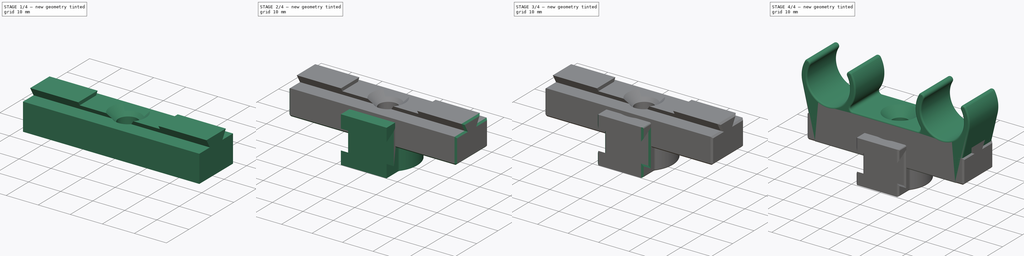
[diagram: build sequence overview — one tinted view per stage of 4, left to right]
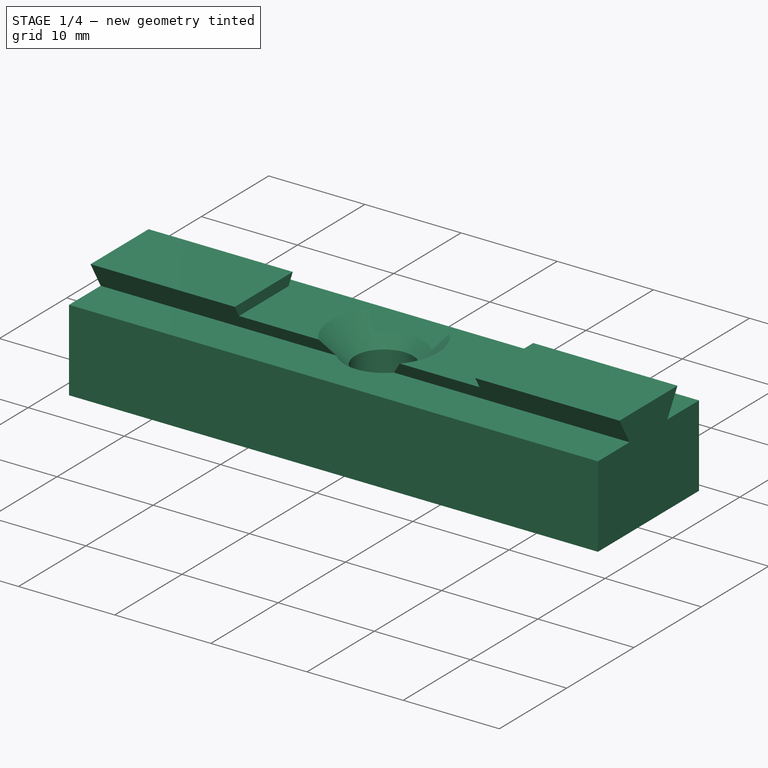
[diagram: stage 1 of 4 — iso view after this stage's code; geometry added in this stage tinted green]
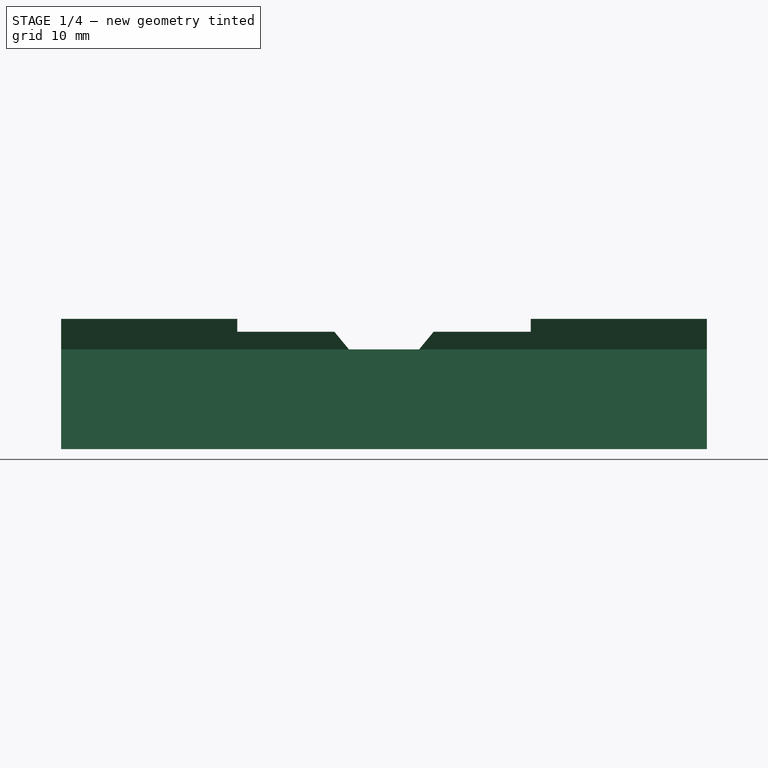
[diagram: stage 1 of 4 — front view after this stage's code; geometry added in this stage tinted green]
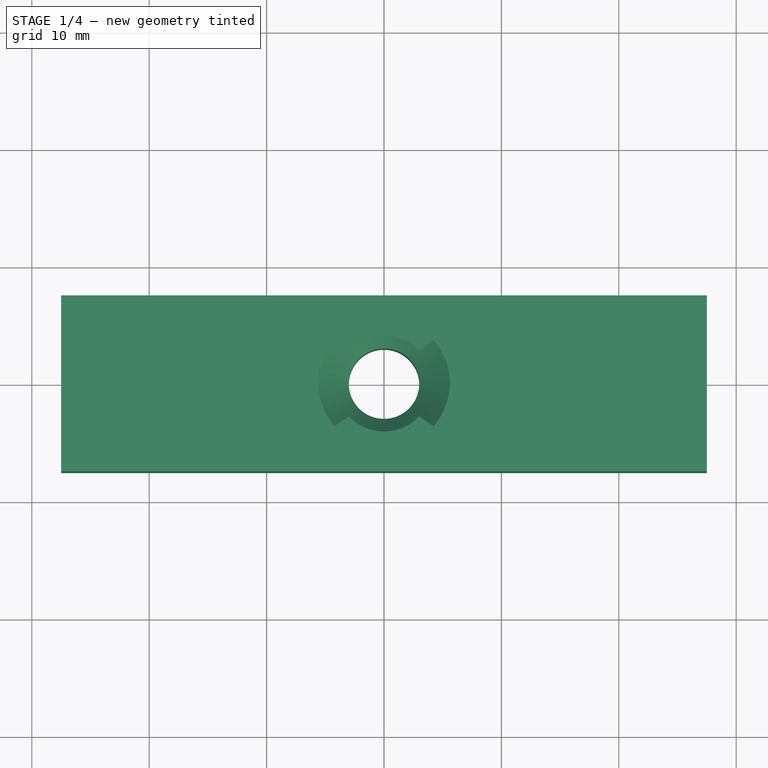
[diagram: stage 1 of 4 — top view after this stage's code; geometry added in this stage tinted green]
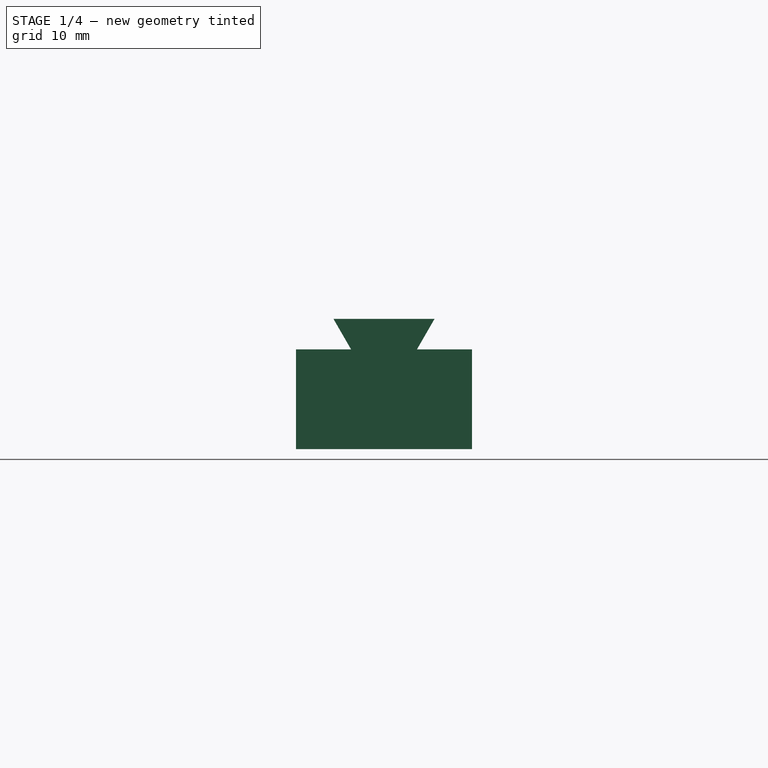
[diagram: stage 1 of 4 — right view after this stage's code; geometry added in this stage tinted green]
FCSTD DOCUMENT  (FreeCAD 1.0R39285 (Git))
Label: PipeMount
License: All rights reserved
LicenseURL: https://en.wikipedia.org/wiki/All_rights_reserved
objects: Sketcher::SketchObject×7, PartDesign::CoordinateSystem×5, PartDesign::Pad×3, App::Link×3, PartDesign::Chamfer×3, PartDesign::Fillet×3, PartDesign::Body×3, PartDesign::Hole×2, PartDesign::Pocket×2, Spreadsheet::Sheet×1, App::DocumentObjectGroup×1, App::Part×1
note: 61 computed .brp shape members not serialized (recipe doc carries the construction recipe); baked Part::Feature solids carry a one-line shape summary decoded from their .brp

FEATURE [Sketcher::SketchObject] Sketch004
  ArcFitTolerance = 1e-06
  AttachmentSupport = -> [YZ_Plane002]
  FullyConstrained = true
  MakeInternals = false
  MapMode = 5
  Placement = pos=(0,0,0) rot=(0.57735,0.57735,0.57735;2.0944rad)
  expr: Constraints[17] = <<Spreadsheet>>.FootWidth
  expr: Constraints[18] = <<Spreadsheet>>.ModularBaseHeight
  expr: Constraints[25] = <<Spreadsheet>>.WedgeWidth
  expr: Constraints[26] = <<Spreadsheet>>.WedgeAngle
  expr: Constraints[27] = <<Spreadsheet>>.WedgeHeight
  expr: Constraints[28] = <<Spreadsheet>>.WedgeTolerance
  expr: Constraints[30] = <<Spreadsheet>>.WedgeTolerance
  sketch-geometry (11):
    g0: LineSegment StartX=-7.5 StartY=0 StartZ=0 EndX=7.5 EndY=0 EndZ=0
    g1: LineSegment StartX=7.5 StartY=0 StartZ=0 EndX=7.5 EndY=8.5 EndZ=0
    g2: LineSegment StartX=7.5 StartY=8.5 StartZ=0 EndX=2.80607 EndY=8.5 EndZ=0
    g3: LineSegment StartX=2.80607 StartY=8.5 StartZ=0 EndX=4.30718 EndY=11.1 EndZ=0
    g4: LineSegment StartX=4.30718 StartY=11.1 StartZ=0 EndX=-4.30718 EndY=11.1 EndZ=0
    g5: LineSegment StartX=-4.30718 StartY=11.1 StartZ=0 EndX=-2.80607 EndY=8.5 EndZ=0
    g6: LineSegment StartX=-2.80607 StartY=8.5 StartZ=0 EndX=-7.5 EndY=8.5 EndZ=0
    g7: LineSegment StartX=-7.5 StartY=8.5 StartZ=0 EndX=-7.5 EndY=0 EndZ=0
    g8: LineSegment [constr] StartX=-3.26795 StartY=8.5 StartZ=0 EndX=-5 EndY=11.5 EndZ=0
    g9: LineSegment [constr] StartX=-5 StartY=11.5 StartZ=0 EndX=5 EndY=11.5 EndZ=0
    g10: LineSegment [constr] StartX=5 StartY=11.5 StartZ=0 EndX=3.26795 EndY=8.5 EndZ=0
  constraints (31):
    c: PointOnObject(g0,g-1)
    c: Coincident(g0,g1)
    c: Vertical(g1)
    c: Coincident(g1,g2)
    c: Horizontal(g2)
    c: Coincident(g2,g3)
    c: Coincident(g3,g4)
    c: Coincident(g4,g5)
    c: Coincident(g5,g6)
    c: Coincident(g6,g7)
    c: Coincident(g7,g0)
    c: Vertical(g7)
    c: Horizontal(g6)
    c: Symmetric(g3,g4,g-2)
    c: Symmetric(g0,g0,g-2)
    c: Equal(g7,g1)
    c: Equal(g2,g6)
    c: DistanceX(g0,g0) = 15
    c: DistanceY(g7,g7) = 8.5
    c: DistanceX(g5,g2) = 5.61214
    c: PointOnObject(g8,g6)
    c: Coincident(g8,g9)
    c: Coincident(g9,g10)
    c: Symmetric(g9,g8,g-2)
    c: Symmetric(g10,g8,g-2)
    c: DistanceX(g9,g9) = 10
    c: Angle(g9,g10) = 1.0472
    c: DistanceY(g10,g9) = 3
    c: DistanceY(g3,g9) = 0.4
    c: Parallel(g3,g10)
    c: Distance(g3,g10) = 0.4
FEATURE [PartDesign::Pad] Pad002
  Direction = (1,0,0)
  Length = 55
  Length2 = 10
  Midplane = true
  Placement = pos=(0,0,0) rot=(1,1,1;2.0944rad)
  Profile = -> Sketch004
  ReferenceAxis = -> Sketch004 [N_Axis]
  Refine = true
  Suppressed = false
  Type = 0
  expr: Length = <<Spreadsheet>>.PipeDistance + <<Spreadsheet>>.PipeDiameter
FEATURE [PartDesign::Body] Body001  label="Modular - Pipe Holder"
  AllowCompound = false
  Group = -> [Sketch002,Pad001,Sketch003,Pocket,Mount_Center,Chamfer002,Chamfer003,Fillet002,Fillet003]
  Origin = -> Origin002
  Tip = -> Fillet003
FEATURE [Sketcher::SketchObject] Sketch005
  ArcFitTolerance = 1e-06
  AttachmentSupport = -> [Pad002]
  ExternalGeometry = -> [Pad002]
  FullyConstrained = true
  MakeInternals = false
  MapMode = 5
  Placement = pos=(-1.7e-15,-7.5,8e-16) rot=(0.57735,0.57735,-0.57735;2.0944rad)
  expr: Constraints[10] = <<Spreadsheet>>.BaseMaxHeight
  expr: Constraints[11] = <<Spreadsheet>>.ModularPipeHolderBaseLength
  sketch-geometry (5):
    g0: LineSegment StartX=-11.1 StartY=12.5 StartZ=0 EndX=-11.1 EndY=-12.5 EndZ=0
    g1: LineSegment StartX=-11.1 StartY=-12.5 StartZ=0 EndX=-10 EndY=-12.5 EndZ=0
    g2: LineSegment StartX=-10 StartY=-12.5 StartZ=0 EndX=-10 EndY=12.5 EndZ=0
    g3: LineSegment StartX=-10 StartY=12.5 StartZ=0 EndX=-11.1 EndY=12.5 EndZ=0
    g4: GeomPoint [constr] X=-10.55 Y=0 Z=0
  constraints (13):
    c: Coincident(g0,g1)
    c: Coincident(g1,g2)
    c: Coincident(g2,g3)
    c: Coincident(g3,g0)
    c: Vertical(g0)
    c: Vertical(g2)
    c: Horizontal(g1)
    c: Horizontal(g3)
    c: Symmetric(g2,g0,g4)
    c: PointOnObject(g4,g-1)
    c: DistanceX(g2,g-1) = 10
    c: DistanceY(g2,g-3) = 15
    c: PointOnObject(g0,g-4)
FEATURE [PartDesign::Pocket] Pocket001
  BaseFeature = -> Pad002
  Direction = (0,1,0)
  Length = 5
  Length2 = 5
  Placement = pos=(0,0,0) rot=(1,1,1;2.0944rad)
  Profile = -> Sketch005
  ReferenceAxis = -> Sketch005 [N_Axis]
  Refine = true
  Suppressed = false
  Type = 1
FEATURE [Sketcher::SketchObject] Sketch006
  ArcFitTolerance = 1e-06
  AttachmentSupport = -> [Pocket001]
  FullyConstrained = true
  MakeInternals = false
  MapMode = 5
  Placement = pos=(-1.1e-15,3.3e-15,10) rot=(0,0,-1;1.5708rad)
  expr: Constraints[1] = <<Spreadsheet>>.HoleDiameter
  sketch-geometry (1):
    g0: Circle CenterX=0 CenterY=0 CenterZ=0 NormalX=0 NormalY=0 NormalZ=1 AngleXU=0 Radius=2.75
  constraints (2):
    c: Coincident(g0,g-1)
    c: Diameter(g0) = 5.5
FEATURE [PartDesign::Hole] Hole001
  BaseFeature = -> Pocket001
  CustomThreadClearance = 0
  Depth = 25
  DepthType = 0
  Diameter = 6
  DrillForDepth = false
  DrillPoint = 1
  DrillPointAngle = 118
  HoleCutCountersinkAngle = 90
  HoleCutCustomValues = false
  HoleCutDepth = 1
  HoleCutDiameter = 11.2
  HoleCutType = 2
  ModelThread = false
  Placement = pos=(0,0,0) rot=(1,1,1;2.0944rad)
  Profile = -> Sketch006
  Refine = true
  Suppressed = false
  Tapered = false
  TaperedAngle = 90
  ThreadClass = 0
  ThreadDepth = 25
  ThreadDepthType = 0
  ThreadDirection = 0
  ThreadFit = 0
  ThreadSize = 0
  ThreadType = 0
  Threaded = false
  UseCustomThreadClearance = false
  expr: HoleCutDepth = <<Spreadsheet>>.HeadDepth
  expr: HoleCutDiameter = <<Spreadsheet>>.HeadDiameter
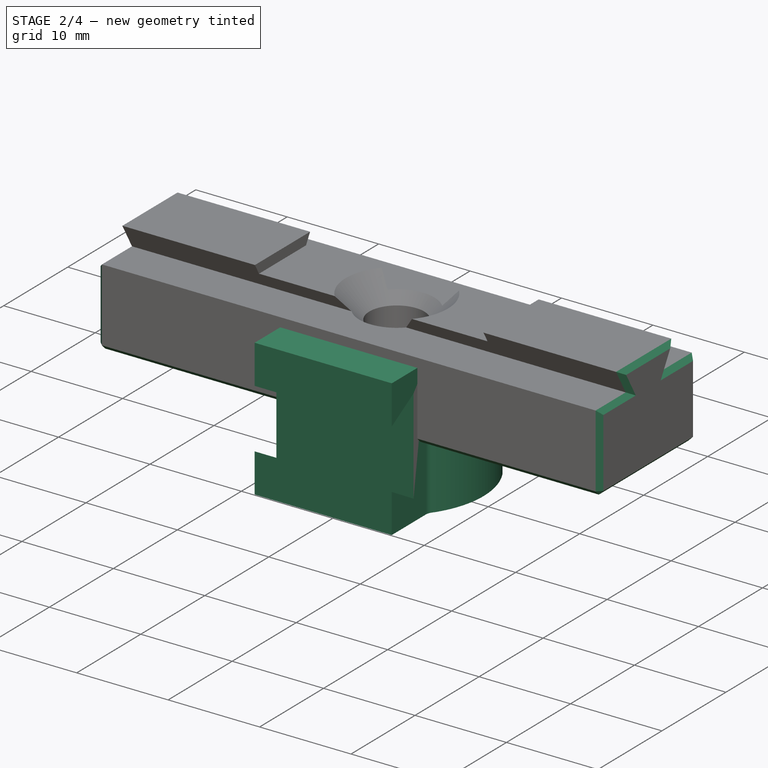
[diagram: stage 2 of 4 — iso view after this stage's code; geometry added in this stage tinted green]
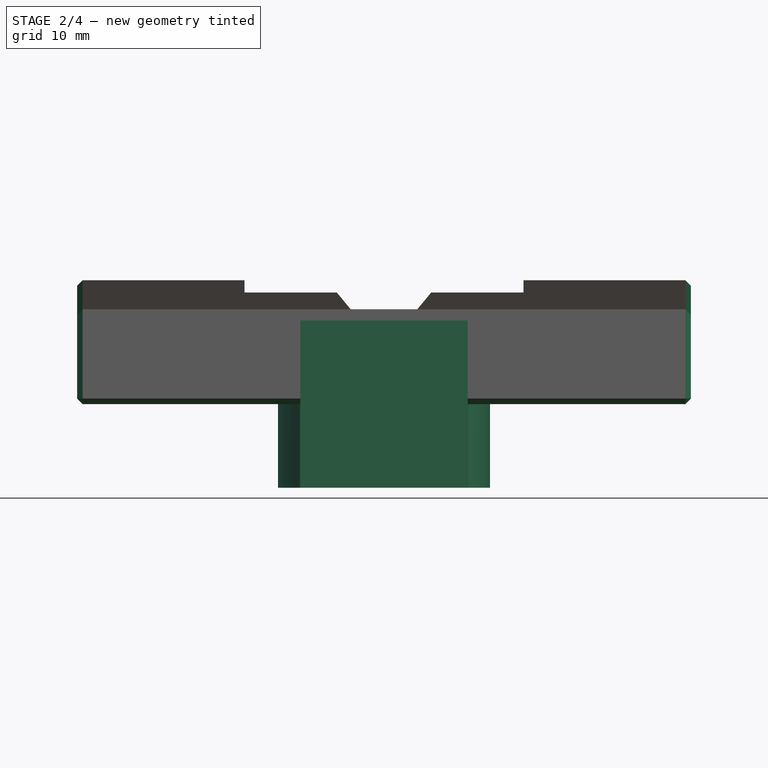
[diagram: stage 2 of 4 — front view after this stage's code; geometry added in this stage tinted green]
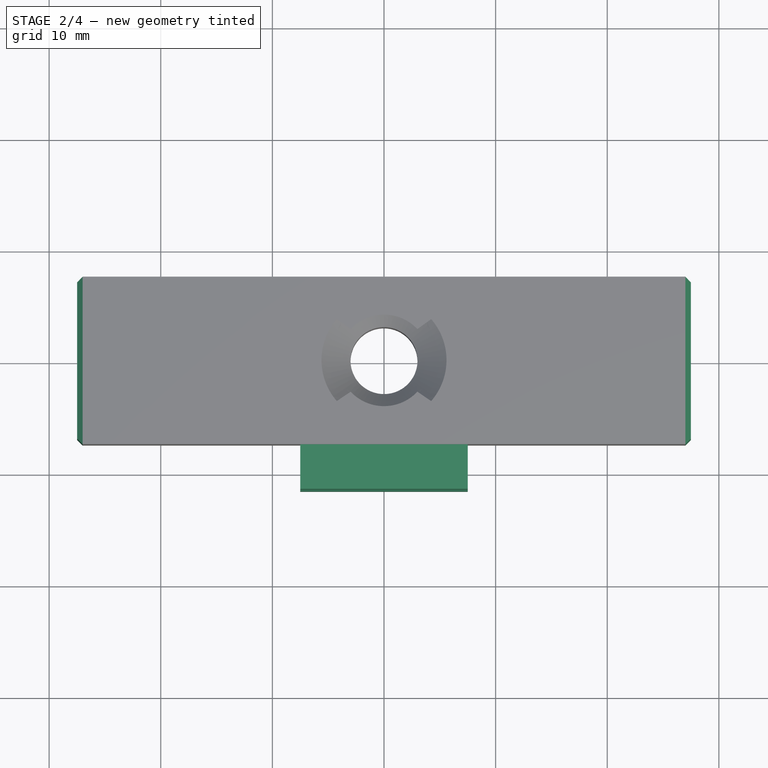
[diagram: stage 2 of 4 — top view after this stage's code; geometry added in this stage tinted green]
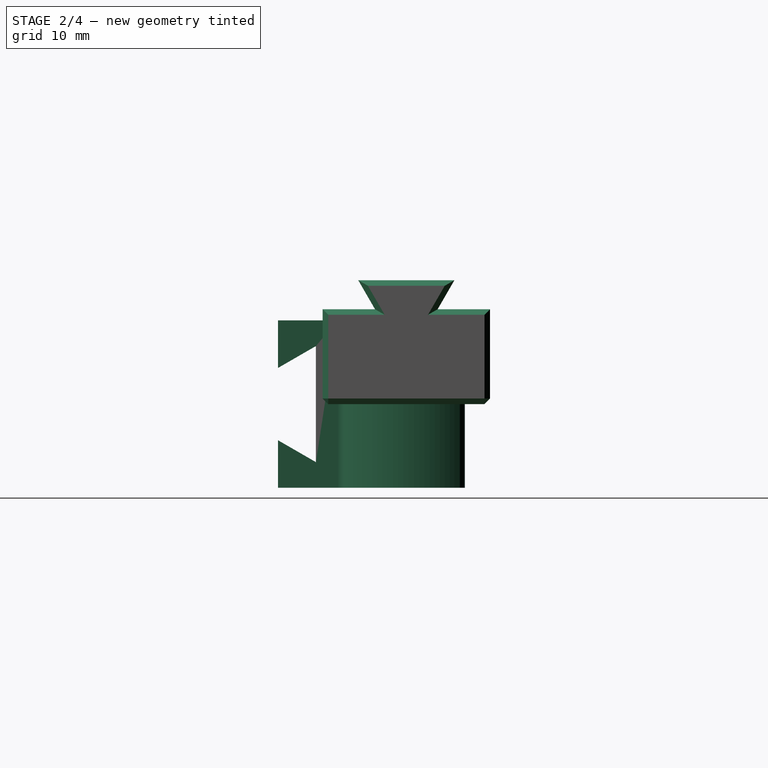
[diagram: stage 2 of 4 — right view after this stage's code; geometry added in this stage tinted green]
FEATURE [Sketcher::SketchObject] Sketch002
  ArcFitTolerance = 1e-06
  AttachmentSupport = -> [XY_Plane001]
  FullyConstrained = true
  MakeInternals = false
  MapMode = 5
  expr: Constraints[10] = <<Spreadsheet>>.PipeDiameter
  expr: Constraints[11] = <<Spreadsheet>>.HolderThickness
  expr: Constraints[12] = <<Spreadsheet>>.PipeOpening
  expr: Constraints[25] = <<Spreadsheet>>.ModularPipeHolderBaseLength
  expr: Constraints[28] = <<Spreadsheet>>.ModularPipeHolderBaseThickness + <<Spreadsheet>>.WedgeHeight
  expr: Constraints[37] = <<Spreadsheet>>.ModularBaseHeight
  sketch-geometry (14):
    g0: ArcOfCircle CenterX=0 CenterY=0 CenterZ=0 NormalX=0 NormalY=0 NormalZ=1 AngleXU=0 Radius=7.5 StartAngle=2.61928 EndAngle=6.8055
    g1: ArcOfCircle CenterX=0 CenterY=0 CenterZ=0 NormalX=0 NormalY=0 NormalZ=1 AngleXU=0 Radius=9.5 StartAngle=2.61928 EndAngle=3.76905
    g2: ArcOfCircle CenterX=0 CenterY=0 CenterZ=0 NormalX=0 NormalY=0 NormalZ=1 AngleXU=0 Radius=9.5 StartAngle=5.65573 EndAngle=6.8055
    g3: ArcOfCircle CenterX=-7.36667 CenterY=4.24055 CenterZ=0 NormalX=0 NormalY=0 NormalZ=1 AngleXU=0 Radius=1 StartAngle=5.76087 EndAngle=8.90246
    g4: ArcOfCircle CenterX=7.36667 CenterY=4.24055 CenterZ=0 NormalX=0 NormalY=0 NormalZ=1 AngleXU=0 Radius=1 StartAngle=0.522315 EndAngle=3.66391
    g5: ArcOfCircle CenterX=-8.5 CenterY=-6.16441 CenterZ=0 NormalX=0 NormalY=0 NormalZ=1 AngleXU=0 Radius=1 StartAngle=2e-16 EndAngle=0.627456
    g6: ArcOfCircle CenterX=8.5 CenterY=-6.16441 CenterZ=0 NormalX=0 NormalY=0 NormalZ=1 AngleXU=0 Radius=1 StartAngle=2.51414 EndAngle=3.14159
    g7: LineSegment StartX=-7.5 StartY=-6.16441 StartZ=0 EndX=-7.5 EndY=-11.5 EndZ=0
    g8: LineSegment StartX=-7.5 StartY=-11.5 StartZ=0 EndX=7.5 EndY=-11.5 EndZ=0
    g9: LineSegment StartX=7.5 StartY=-11.5 StartZ=0 EndX=7.5 EndY=-6.16441 EndZ=0
    g10: GeomPoint X=0 Y=-7.5 Z=0
    g11: LineSegment [constr] StartX=-7.5 StartY=-11.5 StartZ=0 EndX=-7.5 EndY=-20 EndZ=0
    g12: LineSegment [constr] StartX=-7.5 StartY=-20 StartZ=0 EndX=7.5 EndY=-20 EndZ=0
    g13: LineSegment [constr] StartX=7.5 StartY=-20 StartZ=0 EndX=7.5 EndY=-11.5 EndZ=0
  constraints (39):
    c: Tangent(g3,g1) = -1.5708
    c: Tangent(g3,g0) = 1.5708
    c: Tangent(g4,g0) = 1.5708
    c: Coincident(g1,g0)
    c: Coincident(g1,g2)
    c: Coincident(g1,g-1)
    c: Tangent(g4,g2) = -1.5708
    c: Equal(g1,g2)
    c: Horizontal(g0,g0)
    c: Horizontal(g1,g2)
    c: Diameter(g0) = 15
    c: Diameter(g4) = 2
    c: DistanceX(g0,g0) = 13
    c: Coincident(g5,g1)
    c: Tangent(g5,g7) = 1.5708
    c: Coincident(g7,g8)
    c: Horizontal(g8)
    c: Coincident(g8,g9)
    c: Vertical(g9)
    c: Tangent(g9,g6) = 1.5708
    c: Tangent(g6,g2) = 1.5708
    c: Vertical(g7)
    c: Equal(g9,g7)
    c: Equal(g5,g6)
    c: Equal(g6,g4)
    c: DistanceX(g8,g8) = 15
    c: PointOnObject(g10,g0)
    c: PointOnObject(g10,g-2)
    c: DistanceY(g8,g10) = 4
    c: Coincident(g7,g11)
    c: Vertical(g11)
    c: Coincident(g11,g12)
    c: Horizontal(g12)
    c: Coincident(g12,g13)
    c: Coincident(g13,g8)
    c: Vertical(g13)
    c: DistanceY(g11,g0) = 20
    c: DistanceY(g13,g13) = 8.5
    c: DistanceY(g7,g-1) = 11.5
FEATURE [PartDesign::Pad] Pad001
  Direction = (0,0,1)
  Length = 15
  Length2 = 10
  Midplane = true
  Profile = -> Sketch002
  ReferenceAxis = -> Sketch002 [N_Axis]
  Refine = true
  Suppressed = false
  Type = 0
  expr: Length = <<Spreadsheet>>.FootWidth
FEATURE [Sketcher::SketchObject] Sketch003
  ArcFitTolerance = 1e-06
  AttachmentSupport = -> [Pad001]
  ExternalGeometry = -> [Pad001]
  FullyConstrained = true
  MakeInternals = false
  MapMode = 5
  Placement = pos=(7.5,0,0) rot=(0.57735,0.57735,0.57735;2.0944rad)
  expr: Constraints[10] = <<Spreadsheet>>.WedgeAngle
  expr: Constraints[6] = <<Spreadsheet>>.WedgeWidth + <<Spreadsheet>>.WedgeTolerance
  expr: Constraints[7] = <<Spreadsheet>>.WedgeHeight + <<Spreadsheet>>.WedgeTolerance
  sketch-geometry (4):
    g0: LineSegment StartX=-11.5 StartY=-3.23701 StartZ=0 EndX=-11.5 EndY=3.23701 EndZ=0
    g1: LineSegment StartX=-11.5 StartY=3.23701 StartZ=0 EndX=-8.1 EndY=5.2 EndZ=0
    g2: LineSegment StartX=-8.1 StartY=5.2 StartZ=0 EndX=-8.1 EndY=-5.2 EndZ=0
    g3: LineSegment StartX=-8.1 StartY=-5.2 StartZ=0 EndX=-11.5 EndY=-3.23701 EndZ=0
  constraints (11):
    c: Coincident(g0,g1)
    c: Coincident(g1,g2)
    c: Coincident(g2,g3)
    c: Coincident(g3,g0)
    c: Symmetric(g0,g0,g-1)
    c: Symmetric(g2,g1,g-1)
    c: DistanceY(g2,g2) = 10.4
    c: DistanceX(g0,g1) = 3.4
    c: PointOnObject(g0,g-3)
    c: DistanceY(g0,g0) = 6.47402
    c: Angle(g1,g2) = 1.0472
FEATURE [PartDesign::Pocket] Pocket
  BaseFeature = -> Pad001
  Direction = (-1,0,0)
  Length = 5
  Length2 = 5
  Profile = -> Sketch003
  ReferenceAxis = -> Sketch003 [N_Axis]
  Refine = true
  Suppressed = false
  Type = 1
FEATURE [PartDesign::CoordinateSystem] Bottom_Center  label="Bottom Center"
  AttacherType = Attacher::AttachEngine3D
  AttachmentSupport = -> [Hole001]
  MapMode = 11
  Placement = pos=(-1.1e-15,3.6e-15,1.51e-14) rot=(1,0,0;3.14159rad)
FEATURE [PartDesign::CoordinateSystem] Holder_1  label="Holder 1"
  AttacherType = Attacher::AttachEngine3D
  AttachmentOffset = pos=(7.5,0,0) rot=(0,0,1;0rad)
  AttachmentSupport = -> [Hole001]
  MapMode = 45
  Placement = pos=(20,-1.59e-14,8.5) rot=(0,0.707107,0.707107;3.14159rad)
  expr: .AttachmentOffset.Base.x = <<Spreadsheet>>.ModularPipeHolderBaseLength / 2
FEATURE [PartDesign::CoordinateSystem] Holder_2  label="Holder 2"
  AttacherType = Attacher::AttachEngine3D
  AttachmentOffset = pos=(-7.5,0,0) rot=(0,0,1;0rad)
  AttachmentSupport = -> [Hole001]
  MapMode = 45
  Placement = pos=(-20,2.12e-14,8.5) rot=(0,0.707107,0.707107;3.14159rad)
  expr: .AttachmentOffset.Base.x = -<<Spreadsheet>>.ModularPipeHolderBaseLength / 2
FEATURE [PartDesign::Chamfer] Chamfer
  Angle = 45
  Base = -> Hole001 [Face4,Face1,Face3]
  BaseFeature = -> Hole001
  ChamferType = 0
  FlipDirection = false
  Placement = pos=(0,0,0) rot=(1,1,1;2.0944rad)
  Refine = true
  Size = 0.5
  Size2 = 1
  SupportTransform = false
  Suppressed = false
  UseAllEdges = false
  expr: Size = <<Spreadsheet>>.FilletChamfer
FEATURE [PartDesign::Body] Body002  label="Modular - Holder Base"
  AllowCompound = false
  Group = -> [Sketch004,Pad002,Bottom_Center,Holder_1,Holder_2,Sketch005,Pocket001,Sketch006,Hole001,Chamfer]
  Origin = -> Origin003
  Tip = -> Chamfer
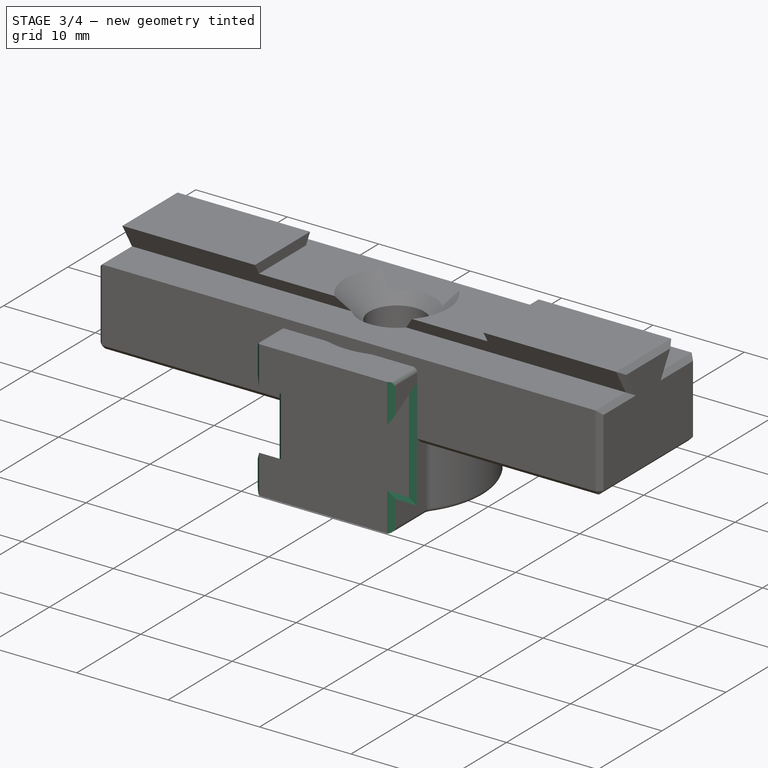
[diagram: stage 3 of 4 — iso view after this stage's code; geometry added in this stage tinted green]
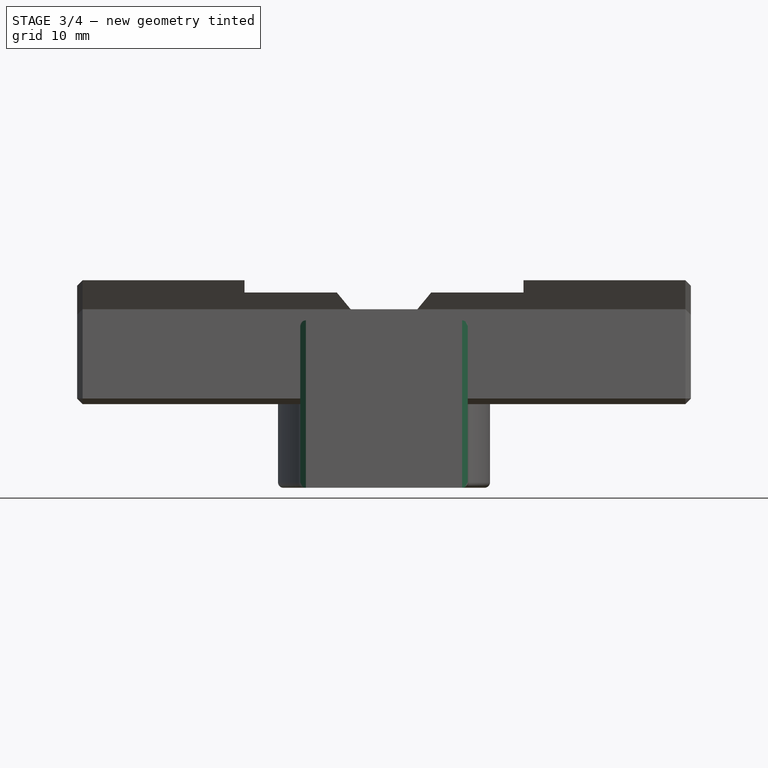
[diagram: stage 3 of 4 — front view after this stage's code; geometry added in this stage tinted green]
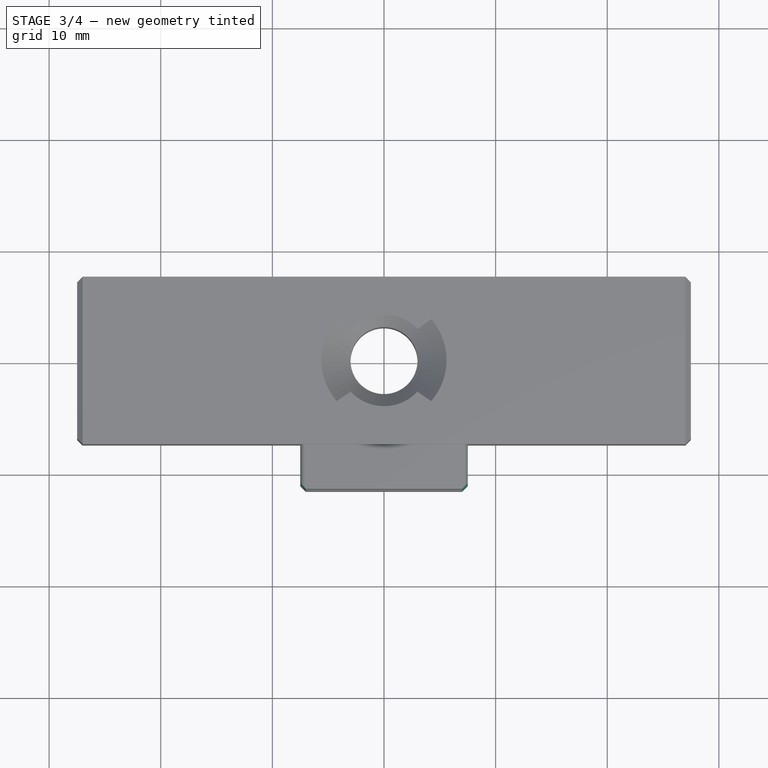
[diagram: stage 3 of 4 — top view after this stage's code; geometry added in this stage tinted green]
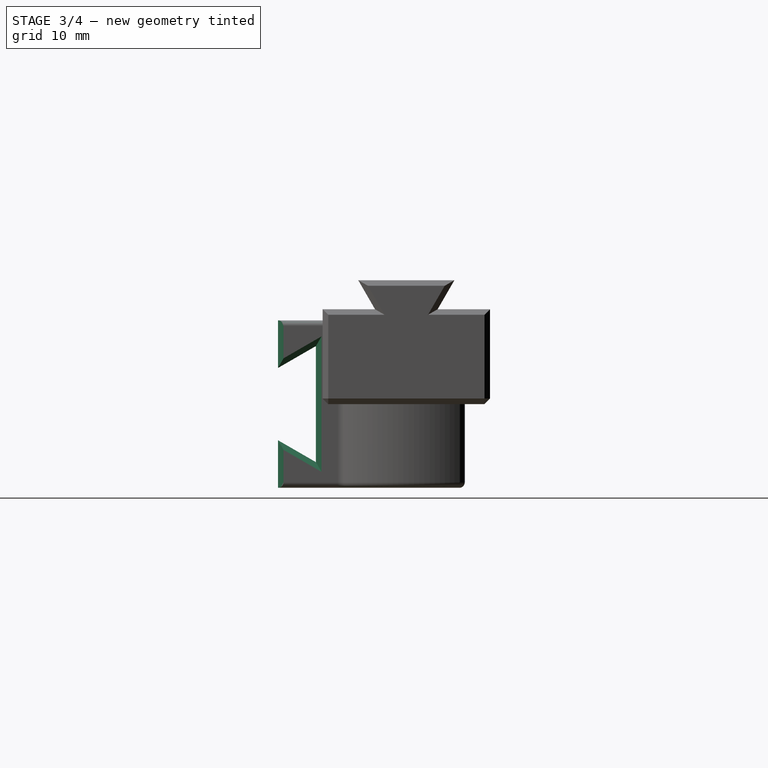
[diagram: stage 3 of 4 — right view after this stage's code; geometry added in this stage tinted green]
FEATURE [App::DocumentObjectGroup] Parts
FEATURE [PartDesign::CoordinateSystem] LCS_Origin
  AttacherType = Attacher::AttachEngine3D
  AttachmentSupport = -> [X_Axis003]
  MapMode = 2
FEATURE [PartDesign::CoordinateSystem] Mount_Center  label="Mount Center"
  AttacherType = Attacher::AttachEngine3D
  AttachmentSupport = -> [Pocket]
  MapMode = 45
  Placement = pos=(-9e-16,-11.5,0) rot=(0.57735,0.57735,0.57735;4.18879rad)
FEATURE [App::Link] Modular___Holder_Base  label="Modular - Holder Base001"
  AttachedBy = #Bottom_Center
  AttachedTo = Parent Assembly#LCS_Origin
  AttachmentOffset = pos=(0,0,0) rot=(0.707107,-0.707107,0;3.14159rad)
  LinkPlacement = pos=(-3.6e-15,-1.1e-15,-1.51e-14) rot=(0,0,-1;1.5708rad)
  LinkedObject = -> Body002
  Placement = pos=(-3.6e-15,-1.1e-15,-1.51e-14) rot=(0,0,-1;1.5708rad)
  SolverId = Asm4EE
  expr: Placement = LCS_Origin.Placement * AttachmentOffset * Bottom_Center.Placement ^ -1
FEATURE [App::Link] Modular___Pipe_Holder  label="Modular - Pipe Holder001"
  AttachedBy = #Mount_Center
  AttachedTo = Modular___Holder_Base#Holder_1
  AttachmentOffset = pos=(0,0,0) rot=(0.57735,-0.57735,-0.57735;4.18879rad)
  LinkPlacement = pos=(-1.43e-14,-20,20) rot=(0.57735,-0.57735,-0.57735;2.0944rad)
  LinkedObject = -> Body001
  Placement = pos=(-1.43e-14,-20,20) rot=(0.57735,-0.57735,-0.57735;2.0944rad)
  SolverId = Asm4EE
  expr: Placement = Modular___Holder_Base.Placement * Holder_1.Placement * AttachmentOffset * Mount_Center.Placement ^ -1
FEATURE [App::Link] Modular___Pipe_Holder001  label="Modular - Pipe Holder002"
  AttachedBy = #Mount_Center
  AttachedTo = Modular___Holder_Base#Holder_2
  AttachmentOffset = pos=(0,0,0) rot=(0.57735,-0.57735,-0.57735;4.18879rad)
  LinkPlacement = pos=(1.39e-14,20,20) rot=(0.57735,-0.57735,-0.57735;2.0944rad)
  LinkedObject = -> Body001
  Placement = pos=(1.39e-14,20,20) rot=(0.57735,-0.57735,-0.57735;2.0944rad)
  SolverId = Asm4EE
  expr: Placement = Modular___Holder_Base.Placement * Holder_2.Placement * AttachmentOffset * Mount_Center.Placement ^ -1
FEATURE [App::Part] Assembly
  AssemblyType = Part::Link
  Group = -> [LCS_Origin,Modular___Holder_Base,Modular___Pipe_Holder,Modular___Pipe_Holder001]
  Origin = -> Origin004
  Type = Assembly
FEATURE [PartDesign::Chamfer] Chamfer002
  Angle = 45
  Base = -> Pocket [Edge29,Edge30,Edge31,Edge32,Edge33]
  BaseFeature = -> Pocket
  ChamferType = 0
  FlipDirection = false
  Refine = true
  Size = 0.5
  Size2 = 1
  SupportTransform = false
  Suppressed = false
  UseAllEdges = false
  expr: Size = Spreadsheet.FilletChamfer
FEATURE [PartDesign::Chamfer] Chamfer003
  Angle = 45
  Base = -> Chamfer002 [Edge23,Edge27,Edge28,Edge29,Edge30]
  BaseFeature = -> Chamfer002
  ChamferType = 0
  FlipDirection = false
  Refine = true
  Size = 0.5
  Size2 = 1
  SupportTransform = false
  Suppressed = false
  UseAllEdges = false
  expr: Size = <<Spreadsheet>>.FilletChamfer
FEATURE [PartDesign::Body] Body  label="Double Mount"
  AllowCompound = false
  Group = -> [Sketch,Pad,Sketch001,Hole,Fillet001]
  Origin = -> Origin
  Tip = -> Fillet001
FEATURE [PartDesign::Fillet] Fillet002
  Base = -> Chamfer003 [Edge11]
  BaseFeature = -> Chamfer003
  Radius = 0.5
  Refine = true
  SupportTransform = false
  Suppressed = false
  UseAllEdges = false
  expr: Radius = <<Spreadsheet>>.FilletChamfer
FEATURE [PartDesign::Fillet] Fillet003
  Base = -> Fillet002 [Edge58]
  BaseFeature = -> Fillet002
  Radius = 0.5
  Refine = true
  SupportTransform = false
  Suppressed = false
  UseAllEdges = false
  expr: Radius = <<Spreadsheet>>.FilletChamfer
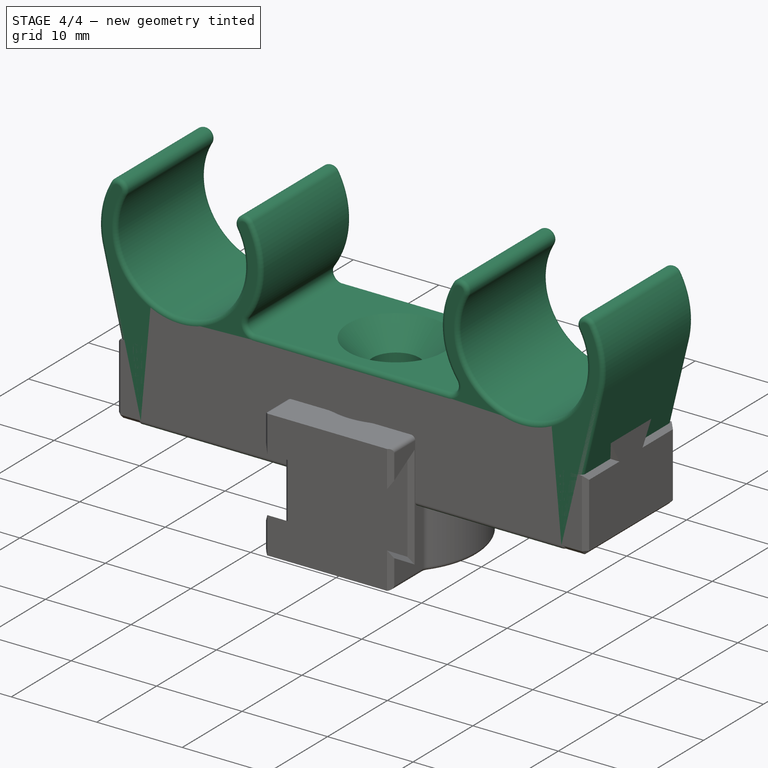
[diagram: stage 4 of 4 — iso view after this stage's code; geometry added in this stage tinted green]
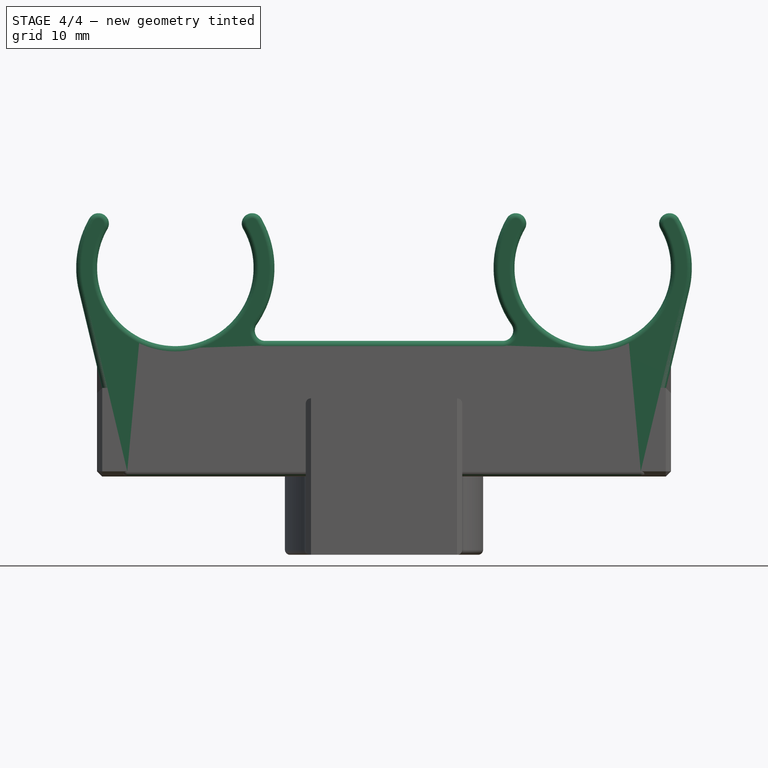
[diagram: stage 4 of 4 — front view after this stage's code; geometry added in this stage tinted green]
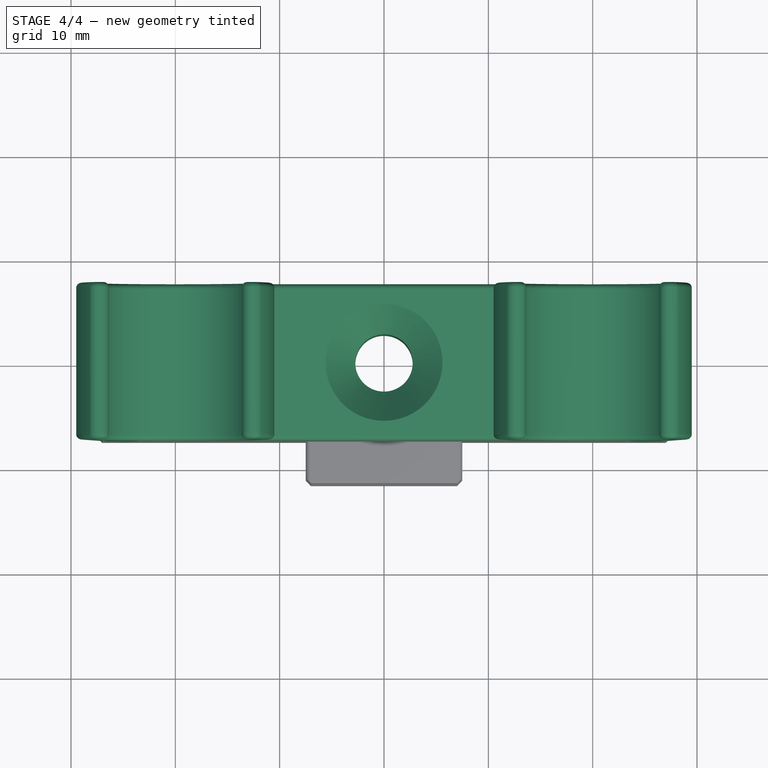
[diagram: stage 4 of 4 — top view after this stage's code; geometry added in this stage tinted green]
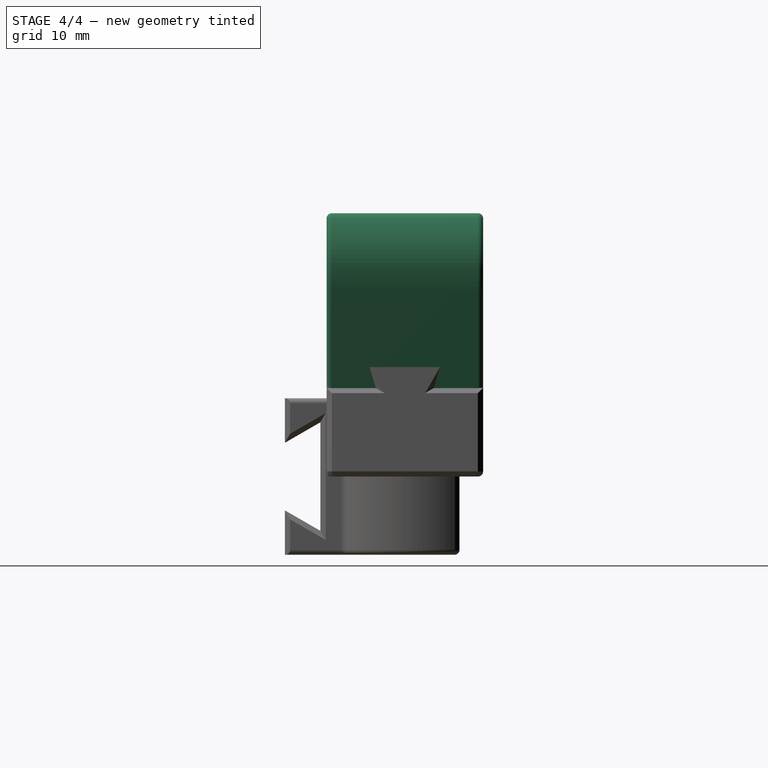
[diagram: stage 4 of 4 — right view after this stage's code; geometry added in this stage tinted green]
FEATURE [Spreadsheet::Sheet] Spreadsheet
  cells = A2='Pipe Diameter; B2(PipeDiameter)==15 mm; C2='*; A3='Pipe opening; B3(PipeOpening)==13 mm; A4='Holder Thickness; B4(HolderThickness)==2 mm; A5='Pipe Center to Foot; B5(PipeCenterToFoot)==7 mm; A7='Pipe Distance; B7(PipeDistance)==40 mm; C7='*; A8='Wall Distance; B8(WallDistance)==20 mm; C8='*; A10='Foot Length; B10(FootLength)==50 mm; A11='Foot Width; B11(FootWidth)==15 mm; A13='Head Diameter; B13(HeadDiameter)==11.2 mm; A14='Head Depth; B14(HeadDepth)==1 mm; A15='Hole Diameter; B15(HoleDiameter)==5.5 mm; A17='Modular Pipe Holder Base Thickness; B17(ModularPipeHolderBaseThickness)==1 mm; A18='Modular Pipe Holder Base Length; B18(ModularPipeHolderBaseLength)==15 mm; A19='Modular Base Height (Calculated); B19(ModularBaseHeight)==WallDistance - PipeDiameter / 2 - ModularPipeHolderBaseThickness - WedgeHeight; A21='Wedge Height; B21(WedgeHeight)==3 mm; A22='Wedge Width; B22(WedgeWidth)==10 mm; A23='Wedge Tolerance; B23(WedgeTolerance)==0.4 mm; A24='Wedge Angle; B24(WedgeAngle)==60 deg; A26='Base Maximum Height; B26(BaseMaxHeight)==10 mm; A28='Fillet/Chamfer; B28(FilletChamfer)==0.5 mm
FEATURE [Sketcher::SketchObject] Sketch
  ArcFitTolerance = 1e-06
  AttachmentSupport = -> [XZ_Plane]
  FullyConstrained = true
  MakeInternals = false
  MapMode = 5
  Placement = pos=(0,0,0) rot=(1,0,0;1.5708rad)
  expr: Constraints[35] = <<Spreadsheet>>.PipeDiameter
  expr: Constraints[36] = <<Spreadsheet>>.HolderThickness
  expr: Constraints[37] = <<Spreadsheet>>.PipeOpening
  expr: Constraints[38] = <<Spreadsheet>>.PipeDistance
  expr: Constraints[39] = <<Spreadsheet>>.WallDistance
  expr: Constraints[40] = <<Spreadsheet>>.FootLength
  expr: Constraints[41] = <<Spreadsheet>>.PipeCenterToFoot
  sketch-geometry (16):
    g0: ArcOfCircle CenterX=-20 CenterY=20 CenterZ=0 NormalX=0 NormalY=0 NormalZ=1 AngleXU=0 Radius=7.5 StartAngle=2.61928 EndAngle=6.8055
    g1: ArcOfCircle CenterX=20 CenterY=20 CenterZ=0 NormalX=0 NormalY=0 NormalZ=1 AngleXU=0 Radius=7.5 StartAngle=2.61928 EndAngle=6.8055
    g2: ArcOfCircle CenterX=-20 CenterY=20 CenterZ=0 NormalX=0 NormalY=0 NormalZ=1 AngleXU=0 Radius=9.5 StartAngle=2.61928 EndAngle=3.37553
    g3: ArcOfCircle CenterX=-20 CenterY=20 CenterZ=0 NormalX=0 NormalY=0 NormalZ=1 AngleXU=0 Radius=9.5 StartAngle=5.67494 EndAngle=6.8055
    g4: ArcOfCircle CenterX=20 CenterY=20 CenterZ=0 NormalX=0 NormalY=0 NormalZ=1 AngleXU=0 Radius=9.5 StartAngle=2.61928 EndAngle=3.74984
    g5: ArcOfCircle CenterX=20 CenterY=20 CenterZ=0 NormalX=0 NormalY=0 NormalZ=1 AngleXU=0 Radius=9.5 StartAngle=6.04925 EndAngle=6.8055
    g6: ArcOfCircle CenterX=-27.3667 CenterY=24.2405 CenterZ=0 NormalX=0 NormalY=0 NormalZ=1 AngleXU=0 Radius=1 StartAngle=5.76087 EndAngle=8.90246
    g7: ArcOfCircle CenterX=-12.6333 CenterY=24.2405 CenterZ=0 NormalX=0 NormalY=0 NormalZ=1 AngleXU=0 Radius=1 StartAngle=0.522315 EndAngle=3.66391
    g8: ArcOfCircle CenterX=12.6333 CenterY=24.2405 CenterZ=0 NormalX=0 NormalY=0 NormalZ=1 AngleXU=0 Radius=1 StartAngle=5.76087 EndAngle=8.90246
    g9: ArcOfCircle CenterX=27.3667 CenterY=24.2405 CenterZ=0 NormalX=0 NormalY=0 NormalZ=1 AngleXU=0 Radius=1 StartAngle=0.522315 EndAngle=3.66391
    g10: LineSegment StartX=-29.2412 StartY=17.7978 StartZ=0 EndX=-25 EndY=0 EndZ=0
    g11: LineSegment StartX=-25 StartY=0 StartZ=0 EndX=25 EndY=0 EndZ=0
    g12: LineSegment StartX=25 StartY=0 StartZ=0 EndX=29.2412 EndY=17.7978 EndZ=0
    g13: LineSegment StartX=-11.3832 StartY=13 StartZ=0 EndX=11.3832 EndY=13 EndZ=0
    g14: ArcOfCircle CenterX=11.3832 CenterY=14 CenterZ=0 NormalX=0 NormalY=0 NormalZ=1 AngleXU=0 Radius=1 StartAngle=4.71239 EndAngle=6.89143
    g15: ArcOfCircle CenterX=-11.3832 CenterY=14 CenterZ=0 NormalX=0 NormalY=0 NormalZ=1 AngleXU=0 Radius=1 StartAngle=2.53335 EndAngle=4.71239
  constraints (42):
    c: Symmetric(g1,g0,g-2)
    c: Equal(g0,g1)
    c: Horizontal(g0,g0)
    c: Horizontal(g0,g1)
    c: Horizontal(g1,g1)
    c: Coincident(g5,g1)
    c: Coincident(g5,g4)
    c: Coincident(g2,g0)
    c: Coincident(g2,g3)
    c: Equal(g2,g3)
    c: Equal(g3,g4)
    c: Equal(g4,g5)
    c: Tangent(g6,g0) = 1.5708
    c: Tangent(g6,g2) = -1.5708
    c: Tangent(g7,g0) = 1.5708
    c: Tangent(g7,g3) = -1.5708
    c: Tangent(g8,g4) = -1.5708
    c: Tangent(g8,g1) = 1.5708
    c: Tangent(g9,g1) = 1.5708
    c: Tangent(g9,g5) = -1.5708
    c: Horizontal(g2,g5)
    c: Tangent(g2,g10) = -1.5708
    c: Coincident(g10,g11)
    c: Horizontal(g11)
    c: Coincident(g11,g12)
    c: Tangent(g12,g5) = -1.5708
    c: PointOnObject(g-1,g11)
    c: Horizontal(g4,g3)
    c: Horizontal(g13)
    c: Tangent(g15,g13) = -1.5708
    c: Tangent(g15,g3) = 1.5708
    c: Tangent(g14,g13) = -1.5708
    c: Tangent(g14,g4) = 1.5708
    c: Equal(g15,g7)
    c: DistanceY(g-1,g13) = 13  'BottomThickness'
    c: Diameter(g1) = 15
    c: Diameter(g9) = 2
    c: DistanceX(g1,g1) = 13
    c: DistanceX(g0,g1) = 40
    c: DistanceY(g0) = 20
    c: DistanceX(g11,g11) = 50
    c: DistanceY(g13,g1) = 7
FEATURE [PartDesign::Pad] Pad
  Direction = (0,-1,2e-16)
  Length = 15
  Length2 = 10
  Midplane = true
  Placement = pos=(0,0,0) rot=(1,0,0;1.5708rad)
  Profile = -> Sketch
  ReferenceAxis = -> Sketch [N_Axis]
  Refine = true
  Suppressed = false
  Type = 0
  expr: Length = <<Spreadsheet>>.FootWidth
FEATURE [Sketcher::SketchObject] Sketch001
  ArcFitTolerance = 1e-06
  AttachmentSupport = -> [Pad]
  FullyConstrained = true
  MakeInternals = false
  MapMode = 5
  Placement = pos=(0,2.9e-15,13) rot=(0,0,1;3.14159rad)
  expr: Constraints[1] = <<Spreadsheet>>.HoleDiameter
  sketch-geometry (1):
    g0: Circle CenterX=0 CenterY=0 CenterZ=0 NormalX=0 NormalY=0 NormalZ=1 AngleXU=0 Radius=2.75
  constraints (2):
    c: Coincident(g0,g-1)
    c: Diameter(g0) = 5.5
FEATURE [PartDesign::Hole] Hole
  BaseFeature = -> Pad
  CustomThreadClearance = 0
  Depth = 129.413
  DepthType = 1
  Diameter = 5.5
  DrillForDepth = false
  DrillPoint = 1
  DrillPointAngle = 118
  HoleCutCountersinkAngle = 90
  HoleCutCustomValues = false
  HoleCutDepth = 1
  HoleCutDiameter = 11.2
  HoleCutType = 2
  ModelThread = false
  Placement = pos=(0,0,0) rot=(1,0,0;1.5708rad)
  Profile = -> Sketch001
  Refine = true
  Suppressed = false
  Tapered = false
  TaperedAngle = 90
  ThreadClass = 0
  ThreadDepth = 129.413
  ThreadDepthType = 0
  ThreadDirection = 0
  ThreadFit = 0
  ThreadSize = 0
  ThreadType = 0
  Threaded = false
  UseCustomThreadClearance = false
  expr: Diameter = <<Spreadsheet>>.HoleDiameter
  expr: HoleCutDepth = <<Spreadsheet>>.HeadDepth
  expr: HoleCutDiameter = <<Spreadsheet>>.HeadDiameter
FEATURE [PartDesign::Fillet] Fillet001
  Base = -> Hole [Face18,Edge21,Edge34]
  BaseFeature = -> Hole
  Placement = pos=(0,0,0) rot=(1,0,0;1.5708rad)
  Radius = 0.5
  Refine = true
  SupportTransform = false
  Suppressed = false
  UseAllEdges = false
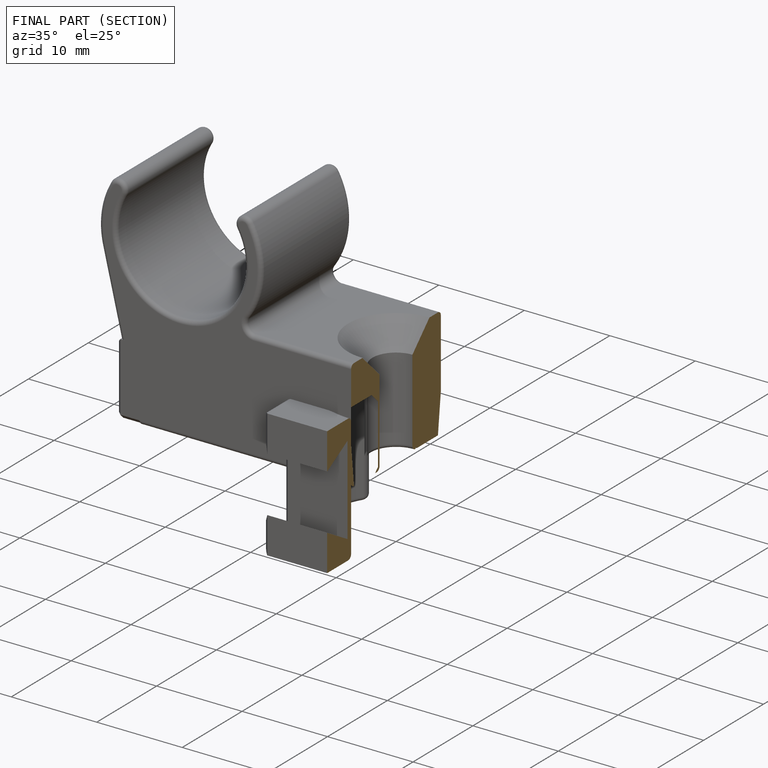
[diagram: finished part — half-section view (interior)]
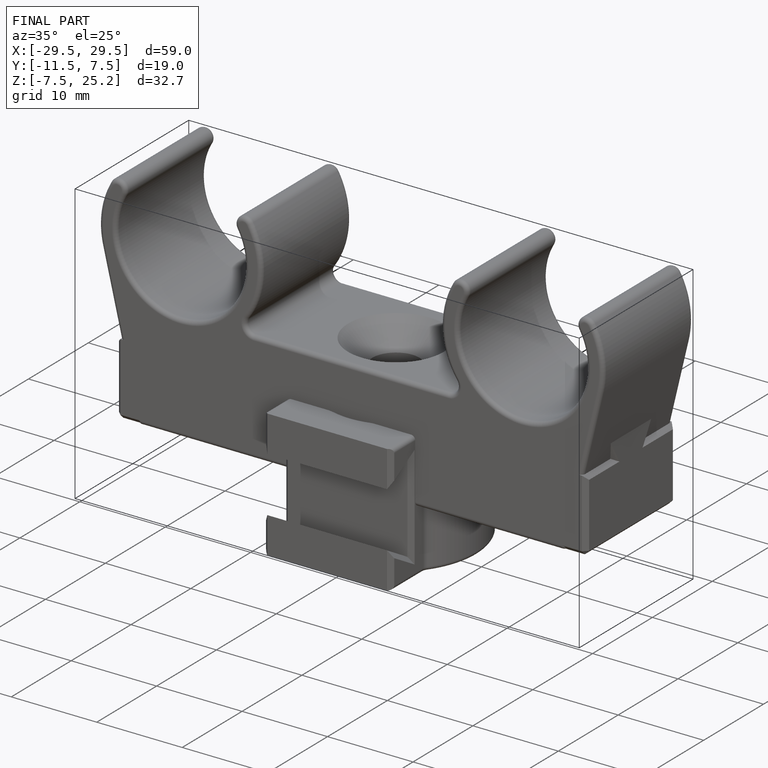
[diagram: finished part — iso view with bounding-box wireframe]
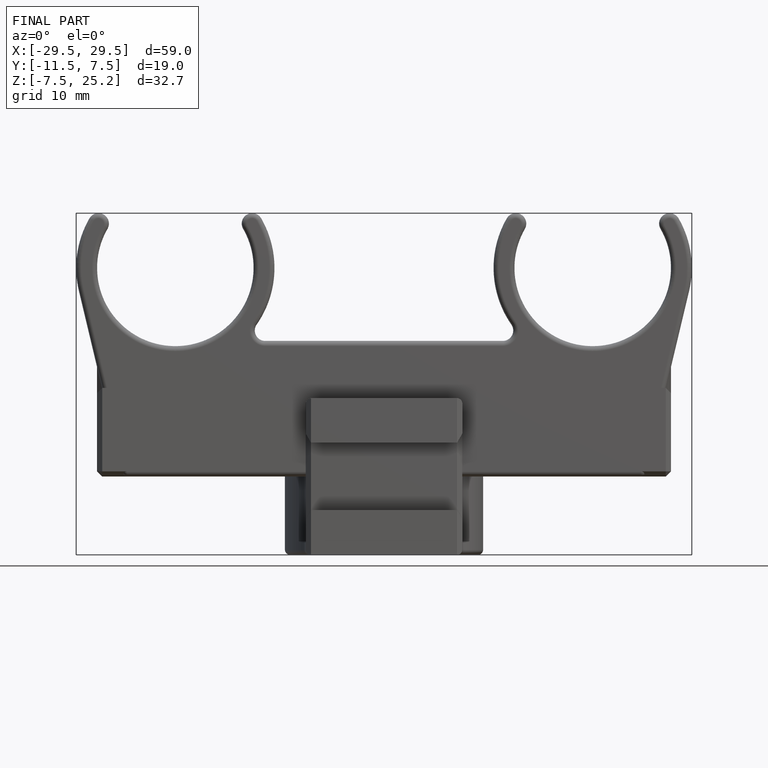
[diagram: finished part — front view with bounding-box wireframe]
